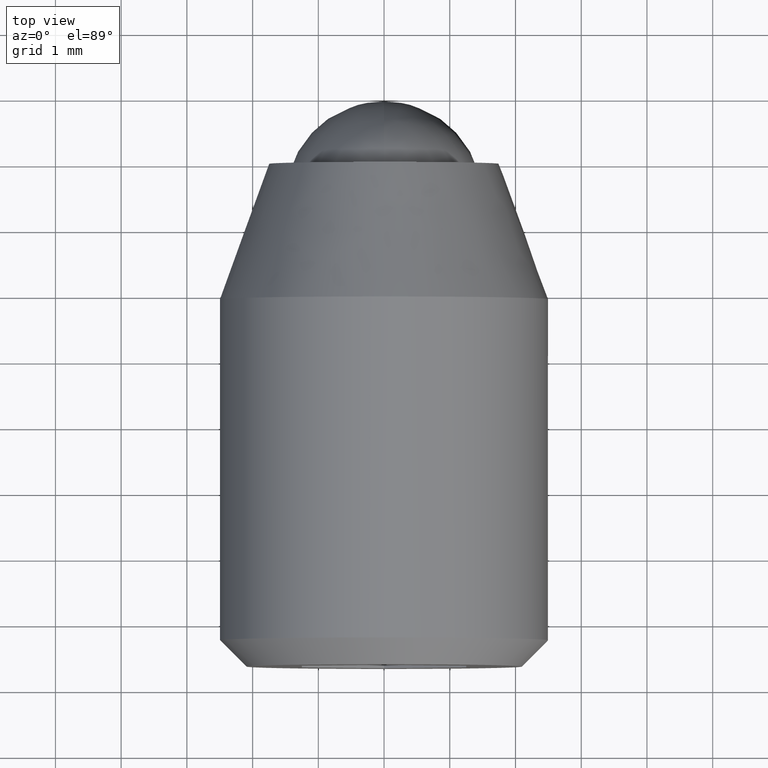
[diagram: clean part render]
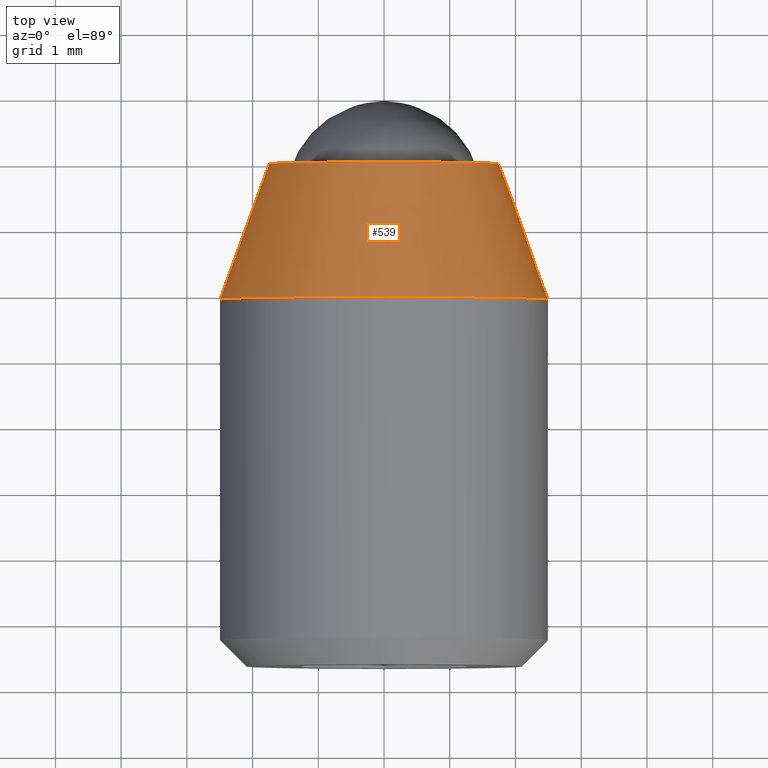
[diagram: same view with one face highlighted and labeled with its STEP entity id]
A machine part, top view. The second image highlights one B-rep face of the part: STEP entity #539.
In plain terms, the highlighted face is a freeform B-spline surface patch.
Its self-contained STEP definition (entity closure, byte-faithful):
#299=CARTESIAN_POINT('',(2.482523263127480,-2.060605639161005,-0.295082957233039));
#300=VERTEX_POINT('',#299);
#314=CARTESIAN_POINT('',(0.0,-2.060608000000000,2.500000000000000));
#315=VERTEX_POINT('',#314);
#316=CARTESIAN_POINT('',(2.482523263127480,-2.060605639161005,-0.295082957233039));
#317=CARTESIAN_POINT('',(2.499999169171603,-2.060605701252197,-0.148058923018585));
#318=CARTESIAN_POINT('',(2.499999194438462,-2.060605771160900,0.000000095752367));
#319=CARTESIAN_POINT('',(2.499999621073361,-2.060606951580398,2.500000045040783));
#320=CARTESIAN_POINT('',(0.0,-2.060608000000000,2.500000000000000));
#328=(BOUNDED_CURVE()B_SPLINE_CURVE(2,(#316,#317,#318,#319,#320),.UNSPECIFIED.,.F.,.U.)B_SPLINE_CURVE_WITH_KNOTS((3,2,3),(0.229562645613831,0.250000000000000,0.500000000000000),.UNSPECIFIED.)CURVE()GEOMETRIC_REPRESENTATION_ITEM()RATIONAL_B_SPLINE_CURVE((0.956027091507652,0.976056149959215,1.0,0.707106781186548,1.0))REPRESENTATION_ITEM(''));
#329=EDGE_CURVE('',#300,#315,#328,.T.);
#331=CARTESIAN_POINT('',(-2.495336816990169,-2.060606771226499,0.152620613390287));
#332=VERTEX_POINT('',#331);
#333=CARTESIAN_POINT('',(0.0,-2.060608000000000,2.500000000000000));
#334=CARTESIAN_POINT('',(-2.351765737195421,-2.060607385613249,2.499999993173940));
#335=CARTESIAN_POINT('',(-2.495336816990170,-2.060606771226500,0.152620613390287));
#343=(BOUNDED_CURVE()B_SPLINE_CURVE(2,(#333,#334,#335),.UNSPECIFIED.,.F.,.U.)B_SPLINE_CURVE_WITH_KNOTS((3,3),(0.500000000000000,0.739333012152409),.UNSPECIFIED.)CURVE()GEOMETRIC_REPRESENTATION_ITEM()RATIONAL_B_SPLINE_CURVE((1.0,0.719603934809447,0.976072148640801))REPRESENTATION_ITEM(''));
#344=EDGE_CURVE('',#315,#332,#343,.T.);
#469=CARTESIAN_POINT('',(1.719147742517098,0.051515200000000,-0.204346768749514));
#470=CARTESIAN_POINT('',(1.724996059245398,0.051515200000000,-0.155145498954499));
#471=CARTESIAN_POINT('',(1.728020869767857,0.051515200000000,-0.105690284069722));
#472=CARTESIAN_POINT('',(1.833711153837578,0.051515200000000,1.622330585698135));
#473=CARTESIAN_POINT('',(0.105690284069721,0.051515200000000,1.728020869767856));
#474=CARTESIAN_POINT('',(-1.622330585698135,0.051515200000000,1.833711153837578));
#475=CARTESIAN_POINT('',(-1.728020869767857,0.051515200000000,0.105690284069721));
#476=CARTESIAN_POINT('',(2.501608217743967,-2.113411080000001,-0.297354057089206));
#477=CARTESIAN_POINT('',(2.510118363105916,-2.113411080000000,-0.225759104660956));
#478=CARTESIAN_POINT('',(2.514519899211837,-2.113411080000000,-0.153794625456328));
#479=CARTESIAN_POINT('',(2.668314524668165,-2.113411080000000,2.360725273755509));
#480=CARTESIAN_POINT('',(0.153794625456328,-2.113411080000000,2.514519899211836));
#481=CARTESIAN_POINT('',(-2.360725273755509,-2.113411080000000,2.668314524668164));
#482=CARTESIAN_POINT('',(-2.514519899211837,-2.113411080000000,0.153794625456327));
#490=(BOUNDED_SURFACE()B_SPLINE_SURFACE(2,1,((#469,#476),(#470,#477),(#471,#478),(#472,#479),(#473,#480),(#474,#481),(#475,#482)),.UNSPECIFIED.,.F.,.F.,.U.)B_SPLINE_SURFACE_WITH_KNOTS((3,2,2,3),(2,2),(0.0,0.166959131653535,4.340937422991916,8.514915714330297),(0.0,2.303866434672636),.UNSPECIFIED.)GEOMETRIC_REPRESENTATION_ITEM()RATIONAL_B_SPLINE_SURFACE(((0.977505800795127,0.977505800795127),(0.988284271247462,0.988284271247462),(1.0,1.0),(0.707106781186548,0.707106781186548),(1.0,1.0),(0.707106781186548,0.707106781186548),(1.0,1.0)))REPRESENTATION_ITEM('')SURFACE());
#491=ORIENTED_EDGE('',*,*,#329,.F.);
#492=CARTESIAN_POINT('',(1.737766671136094,-1.200028E-012,-0.206559910655735));
#493=VERTEX_POINT('',#492);
#494=CARTESIAN_POINT('',(1.737766671136094,-1.200028E-012,-0.206559910655735));
#495=CARTESIAN_POINT('',(2.482523263127480,-2.060605639161005,-0.295082957233039));
#496=QUASI_UNIFORM_CURVE('',1,(#494,#495),.UNSPECIFIED.,.F.,.U.);
#497=EDGE_CURVE('',#493,#300,#496,.T.);
#498=ORIENTED_EDGE('',*,*,#497,.F.);
#499=CARTESIAN_POINT('',(0.0,0.0,1.750000000000000));
#500=VERTEX_POINT('',#499);
#501=CARTESIAN_POINT('',(1.737766671136094,-1.200028E-012,-0.206559910655735));
#502=CARTESIAN_POINT('',(1.750000000000000,0.0,-0.103642209397266));
#503=CARTESIAN_POINT('',(1.750000000000000,0.0,-5.143347E-016));
#504=CARTESIAN_POINT('',(1.750000000000000,0.0,1.750000000000000));
#505=CARTESIAN_POINT('',(0.0,0.0,1.750000000000000));
#513=(BOUNDED_CURVE()B_SPLINE_CURVE(2,(#501,#502,#503,#504,#505),.UNSPECIFIED.,.F.,.U.)B_SPLINE_CURVE_WITH_KNOTS((3,2,3),(0.229562473514408,0.250000000000000,0.500000000000000),.UNSPECIFIED.)CURVE()GEOMETRIC_REPRESENTATION_ITEM()RATIONAL_B_SPLINE_CURVE((0.956026754185463,0.976055948332199,1.0,0.707106781186547,1.0))REPRESENTATION_ITEM(''));
#514=EDGE_CURVE('',#493,#500,#513,.T.);
#515=ORIENTED_EDGE('',*,*,#514,.T.);
#516=CARTESIAN_POINT('',(-1.746735897238305,-1.256870E-012,0.106834944192873));
#517=VERTEX_POINT('',#516);
#518=CARTESIAN_POINT('',(0.0,0.0,1.750000000000000));
#519=CARTESIAN_POINT('',(-1.646235617072029,0.0,1.749999999999999));
#520=CARTESIAN_POINT('',(-1.746735897238305,-1.256870E-012,0.106834944192873));
#528=(BOUNDED_CURVE()B_SPLINE_CURVE(2,(#518,#519,#520),.UNSPECIFIED.,.F.,.U.)B_SPLINE_CURVE_WITH_KNOTS((3,3),(0.500000000000000,0.739332962240615),.UNSPECIFIED.)CURVE()GEOMETRIC_REPRESENTATION_ITEM()RATIONAL_B_SPLINE_CURVE((1.0,0.719603993284751,0.976072041670301))REPRESENTATION_ITEM(''));
#529=EDGE_CURVE('',#500,#517,#528,.T.);
#530=ORIENTED_EDGE('',*,*,#529,.T.);
#531=CARTESIAN_POINT('',(-1.746735897238305,-1.256870E-012,0.106834944192873));
#532=CARTESIAN_POINT('',(-2.495336816990169,-2.060606771226499,0.152620613390287));
#533=QUASI_UNIFORM_CURVE('',1,(#531,#532),.UNSPECIFIED.,.F.,.U.);
#534=EDGE_CURVE('',#517,#332,#533,.T.);
#535=ORIENTED_EDGE('',*,*,#534,.T.);
#536=ORIENTED_EDGE('',*,*,#344,.F.);
#537=EDGE_LOOP('',(#491,#498,#515,#530,#535,#536));
#538=FACE_OUTER_BOUND('',#537,.T.);
#539=ADVANCED_FACE('',(#538),#490,.T.);